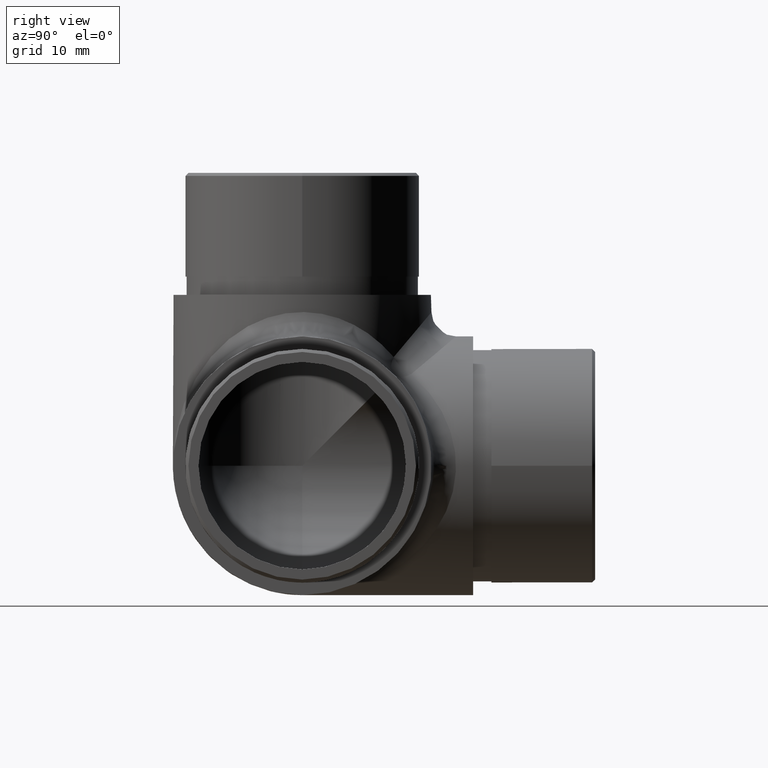
[diagram: clean part render]
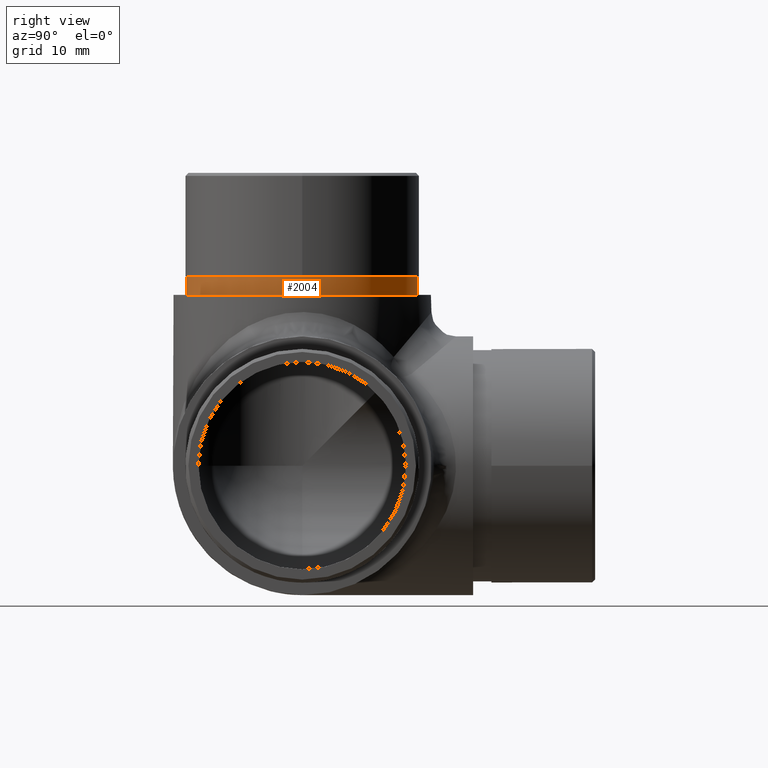
[diagram: same view with one face highlighted and labeled with its STEP entity id]
A machine part, right view. The second image highlights one B-rep face of the part: STEP entity #2004.
In plain terms, the highlighted cylindrical surface (bore or boss wall) has radius 18.95 mm, axis along (-0, -0, -1).
Its self-contained STEP definition (entity closure, byte-faithful):
#30 = CYLINDRICAL_SURFACE ( 'NONE', #4844, 18.95000000000000300 ) ;
#992 = CIRCLE ( 'NONE', #11086, 18.95000000000000300 ) ;
#1802 = EDGE_LOOP ( 'NONE', ( #9941 ) ) ;
#2004 = ADVANCED_FACE ( 'NONE', ( #5665, #3609 ), #30, .T. ) ;
#2405 = DIRECTION ( 'NONE',  ( -0.0000000000000000000, -0.0000000000000000000, -1.000000000000000000 ) ) ;
#3609 = FACE_OUTER_BOUND ( 'NONE', #1802, .T. ) ;
#3813 = CARTESIAN_POINT ( 'NONE',  ( 18.95000000000000300, 21.19999999999999900, 52.19999999999999600 ) ) ;
#4791 = CARTESIAN_POINT ( 'NONE',  ( -18.95000000000000300, 21.19999999999999900, 49.19999999999999600 ) ) ;
#4844 = AXIS2_PLACEMENT_3D ( 'NONE', #10570, #2405, #11516 ) ;
#5665 = FACE_OUTER_BOUND ( 'NONE', #8165, .T. ) ;
#7212 = EDGE_CURVE ( 'NONE', #11451, #11451, #8444, .T. ) ;
#7492 = ORIENTED_EDGE ( 'NONE', *, *, #7212, .F. ) ;
#7648 = DIRECTION ( 'NONE',  ( -1.000000000000000000, 0.0000000000000000000, 0.0000000000000000000 ) ) ;
#7840 = DIRECTION ( 'NONE',  ( 0.0000000000000000000, 0.0000000000000000000, 1.000000000000000000 ) ) ;
#8165 = EDGE_LOOP ( 'NONE', ( #7492 ) ) ;
#8444 = CIRCLE ( 'NONE', #11559, 18.95000000000000300 ) ;
#9831 = DIRECTION ( 'NONE',  ( 1.000000000000000000, 0.0000000000000000000, 0.0000000000000000000 ) ) ;
#9878 = CARTESIAN_POINT ( 'NONE',  ( 0.0000000000000000000, 21.19999999999999900, 52.19999999999999600 ) ) ;
#9941 = ORIENTED_EDGE ( 'NONE', *, *, #11140, .T. ) ;
#10570 = CARTESIAN_POINT ( 'NONE',  ( 0.0000000000000000000, 21.19999999999999900, 52.19999999999999600 ) ) ;
#10691 = CARTESIAN_POINT ( 'NONE',  ( 0.0000000000000000000, 21.19999999999999900, 49.19999999999999600 ) ) ;
#11086 = AXIS2_PLACEMENT_3D ( 'NONE', #10691, #11674, #7648 ) ;
#11140 = EDGE_CURVE ( 'NONE', #11592, #11592, #992, .T. ) ;
#11451 = VERTEX_POINT ( 'NONE', #3813 ) ;
#11516 = DIRECTION ( 'NONE',  ( -1.000000000000000000, 0.0000000000000000000, 0.0000000000000000000 ) ) ;
#11559 = AXIS2_PLACEMENT_3D ( 'NONE', #9878, #7840, #9831 ) ;
#11592 = VERTEX_POINT ( 'NONE', #4791 ) ;
#11674 = DIRECTION ( 'NONE',  ( -0.0000000000000000000, -0.0000000000000000000, 1.000000000000000000 ) ) ;